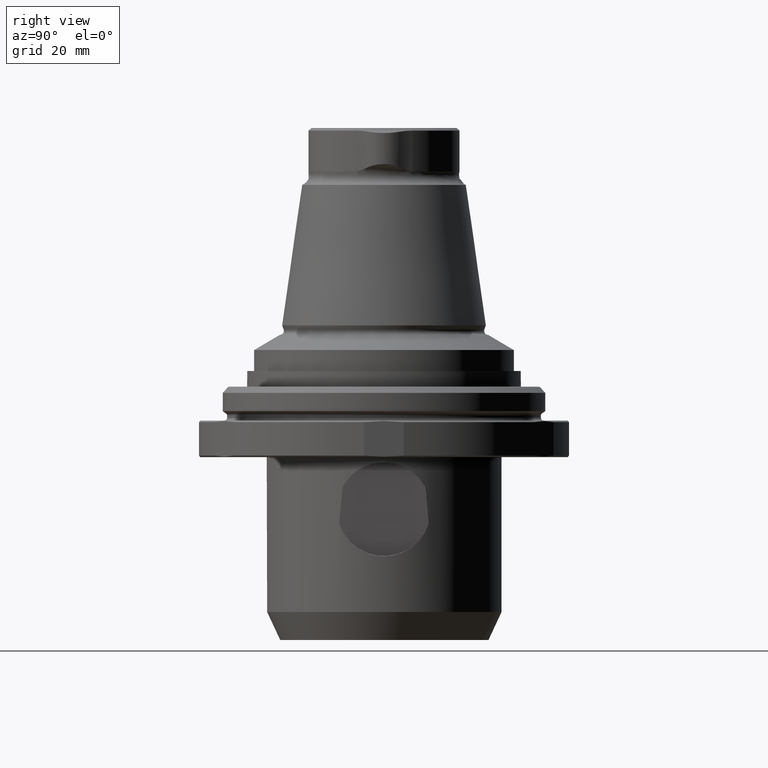
[diagram: clean part render]
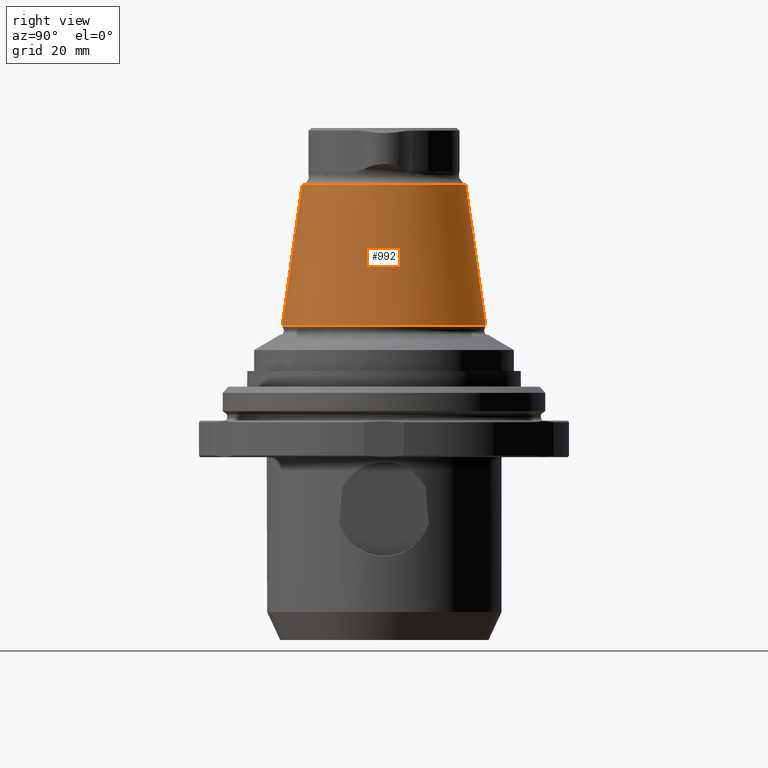
[diagram: same view with one face highlighted and labeled with its STEP entity id]
A machine part, right view. The second image highlights one B-rep face of the part: STEP entity #992.
In plain terms, the highlighted conical surface has half-angle 7.95 deg.
Its self-contained STEP definition (entity closure, byte-faithful):
#38=CONICAL_SURFACE('',#1123,19.5234803751964,0.138753675533549);
#107=CIRCLE('',#1122,15.7697129677509);
#108=CIRCLE('',#1124,19.5234803751964);
#398=ORIENTED_EDGE('',*,*,#550,.T.);
#399=ORIENTED_EDGE('',*,*,#551,.F.);
#550=EDGE_CURVE('',#649,#649,#107,.T.);
#551=EDGE_CURVE('',#650,#650,#108,.T.);
#649=VERTEX_POINT('',#1866);
#650=VERTEX_POINT('',#1869);
#792=EDGE_LOOP('',(#398));
#793=EDGE_LOOP('',(#399));
#888=FACE_BOUND('',#792,.T.);
#889=FACE_BOUND('',#793,.T.);
#992=ADVANCED_FACE('',(#888,#889),#38,.T.);
#1122=AXIS2_PLACEMENT_3D('',#1865,#1385,#1386);
#1123=AXIS2_PLACEMENT_3D('',#1867,#1387,#1388);
#1124=AXIS2_PLACEMENT_3D('',#1868,#1389,#1390);
#1385=DIRECTION('',(-4.38328612912168E-16,-8.51929322185263E-24,-1.));
#1386=DIRECTION('',(-1.,9.77164313006873E-16,4.38328610599545E-16));
#1387=DIRECTION('',(-4.38328612912168E-16,-8.51929322185263E-24,-1.));
#1388=DIRECTION('',(-1.,9.77164313006873E-16,4.38328610599545E-16));
#1389=DIRECTION('',(-4.38328612912168E-16,-8.51929322185263E-24,-1.));
#1390=DIRECTION('',(-1.,9.77164313006873E-16,4.38328610599545E-16));
#1865=CARTESIAN_POINT('',(-6.84295923615457E-14,-9.81645347925611E-14,44.108));
#1866=CARTESIAN_POINT('',(-15.7697129677509,-8.27549340541132E-14,44.108));
#1867=CARTESIAN_POINT('',(-8.02117003448131E-14,-9.81645350215565E-14,17.2283767306235));
#1868=CARTESIAN_POINT('',(-8.02117003448131E-14,-9.81645350215565E-14,17.2283767306235));
#1869=CARTESIAN_POINT('',(-19.5234803751965,-7.90868867332246E-14,17.2283767306235));